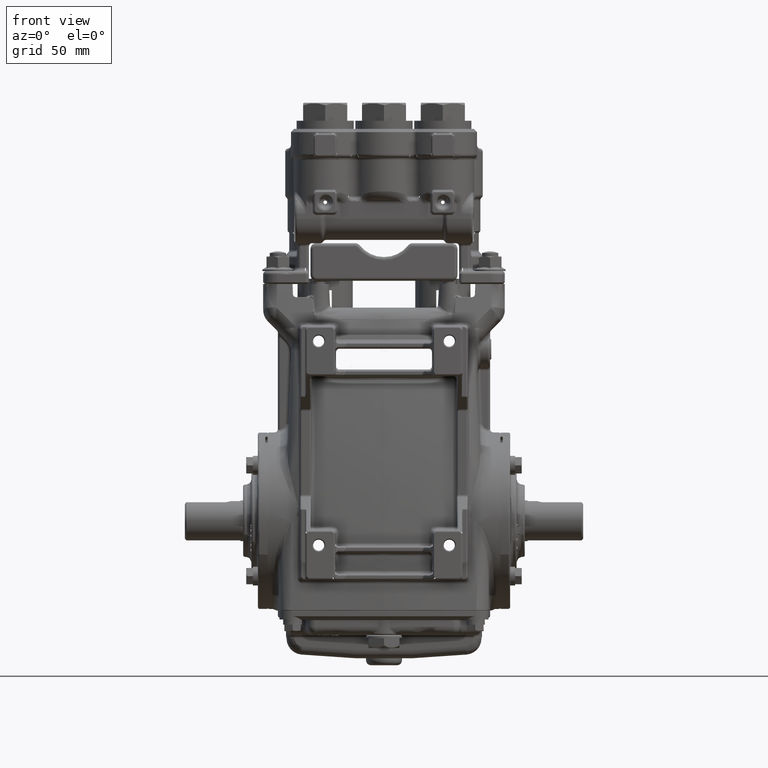
[diagram: clean part render]
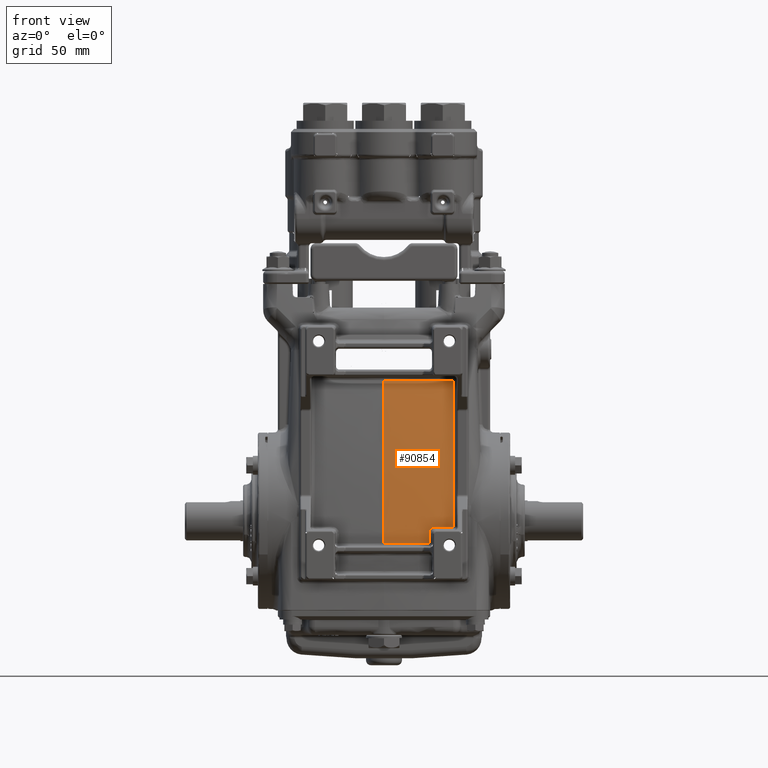
[diagram: same view with one face highlighted and labeled with its STEP entity id]
A machine part, front view. The second image highlights one B-rep face of the part: STEP entity #90854.
In plain terms, the highlighted face is a freeform B-spline surface patch.
Its self-contained STEP definition (entity closure, byte-faithful):
#553 = CARTESIAN_POINT ( 'NONE',  ( 2.083726086542785794, -2.166614530041787390, 0.4897784465330164427 ) ) ;
#942 = CARTESIAN_POINT ( 'NONE',  ( -1.758570860625543910E-16, -2.142492827023651625, 1.101084419947147230 ) ) ;
#1778 = B_SPLINE_CURVE_WITH_KNOTS ( 'NONE', 3,
 ( #11293, #28639, #89677, #46492, #99467, #942, #91385, #98891, #45925, #71290 ),
 .UNSPECIFIED., .F., .F.,
 ( 4, 2, 2, 2, 4 ),
 ( 0.06024417320094749978, 0.08542293328770995953, 0.1106016933744723985, 0.1357804534612348513, 0.1609592135479973041 ),
 .UNSPECIFIED. ) ;
#2105 = CARTESIAN_POINT ( 'NONE',  ( 1.663672434191497240, -1.730195569268732747, 3.388363233297321475 ) ) ;
#2973 = CARTESIAN_POINT ( 'NONE',  ( -2.189576524486962494, -2.325080261920545954, -2.165354330708661124 ) ) ;
#4099 = CARTESIAN_POINT ( 'NONE',  ( 0.4802293617885408650, -2.293642939336622888, 0.4897784465330087822 ) ) ;
#4658 = CARTESIAN_POINT ( 'NONE',  ( 0.8095103919857099539, -1.292140362101247275, 5.708661417322844045 ) ) ;
#5232 = CARTESIAN_POINT ( 'NONE',  ( 0.4731394191495167378, -2.398237061164401940, -2.165354330708661568 ) ) ;
#5571 = CARTESIAN_POINT ( 'NONE',  ( 1.144808578580310598, -2.243454319908963601, -0.1825626556147570412 ) ) ;
#5796 = CARTESIAN_POINT ( 'NONE',  ( 1.915486056463429509, -2.186527716124487153, 0.4897784465330153325 ) ) ;
#6350 = CARTESIAN_POINT ( 'NONE',  ( -1.062078202322136677, -2.384053432892072166, -2.165354330708661124 ) ) ;
#6658 = CARTESIAN_POINT ( 'NONE',  ( 1.671499988180573437, -2.204385450591111351, -0.1498612659050825024 ) ) ;
#6912 = CARTESIAN_POINT ( 'NONE',  ( 2.240980235268056564, -2.321187910974374269, -2.165354330708661568 ) ) ;
#7489 = CARTESIAN_POINT ( 'NONE',  ( 2.913385826771652809, -1.197969208711458178, 5.708661417322836940 ) ) ;
#8273 = B_SPLINE_SURFACE_WITH_KNOTS ( 'NONE', 3, 3, ( 
 ( #38159, #47377, #20276, #72171 ),
 ( #82462, #99779, #107286, #55484 ),
 ( #100336, #63550, #11601, #46805 ),
 ( #98632, #19697, #38718, #73853 ),
 ( #2973, #30087, #56623, #22543 ),
 ( #57732, #102597, #13847, #94504 ),
 ( #65798, #84151, #58297, #66923 ),
 ( #111771, #15548, #48481, #57177 ),
 ( #85279, #76669, #32892, #23680 ),
 ( #6350, #93387, #109510, #103157 ),
 ( #14989, #102017, #58873, #32320 ),
 ( #92819, #68055, #39259, #13290 ),
 ( #83572, #49065, #40963, #93946 ),
 ( #67491, #41517, #83025, #100899 ),
 ( #50200, #24240, #59426, #21981 ),
 ( #5232, #4099, #74416, #49637 ),
 ( #14421, #30644, #92264, #4658 ),
 ( #39815, #74982, #110077, #31210 ),
 ( #66372, #76108, #40394, #84723 ),
 ( #101456, #75554, #110654, #31766 ),
 ( #23104, #5796, #111208, #85835 ),
 ( #68624, #553, #70874, #97356 ),
 ( #6912, #50764, #16704, #27107 ),
 ( #105439, #62276, #44367, #42096 ),
 ( #77239, #112340, #59990, #95079 ),
 ( #104299, #33460, #16129, #51909 ),
 ( #103717, #24808, #17843, #7489 ) ),
 .UNSPECIFIED., .F., .F., .F.,
 ( 4, 1, 1, 1, 1, 1, 1, 1, 1, 1, 1, 2, 1, 1, 1, 1, 1, 1, 1, 1, 1, 1, 1, 4 ),
 ( 4, 4 ),
 ( 0.1820721574386664487, 0.1959246563835279065, 0.2035427212275890407, 0.2193976784518300027, 0.2310405802590582147, 0.2359332488469739197, 0.2508238822397266254, 0.2638475608825300855, 0.2796596398469345934, 0.2995163485322877017, 0.3173264764016465178, 0.3410360787193327248, 0.3577107850873240125, 0.3637457220820375925, 0.3805901526646463529, 0.4065920388027236543, 0.4224714650153005291, 0.4387315542144890612, 0.4421836685404009204, 0.4588536976265763512, 0.4664841599499357505, 0.4748837514135769711, 0.4901004416486962612, 0.5000000000000002220 ),
 ( 0.000000000000000000, 1.000000000000000000 ),
 .UNSPECIFIED. ) ;
#8288 = CARTESIAN_POINT ( 'NONE',  ( 1.084498845193367922, -2.278379151644223111, -0.5438560755862406060 ) ) ;
#8927 = CARTESIAN_POINT ( 'NONE',  ( 1.527915027197057851, -2.215913157812103851, -0.1499813333665312165 ) ) ;
#10197 = VERTEX_POINT ( 'NONE', #8288 ) ;
#10890 = CARTESIAN_POINT ( 'NONE',  ( 1.084292040675105540, -2.269580977062863880, -0.4392384004682781118 ) ) ;
#11293 = CARTESIAN_POINT ( 'NONE',  ( -3.880358019103940263E-16, -1.793953829572055847, 3.388778491068083820 ) ) ;
#11601 = CARTESIAN_POINT ( 'NONE',  ( -2.706392384829026998, -1.723957603235172220, 3.127925920230758550 ) ) ;
#12170 = FACE_OUTER_BOUND ( 'NONE', #100682, .T. ) ;
#12506 = CARTESIAN_POINT ( 'NONE',  ( 1.240444894278595944, -2.234850677969940413, -0.1501769756821681734 ) ) ;
#12872 = ORIENTED_EDGE ( 'NONE', *, *, #52642, .T. ) ;
#12983 = CARTESIAN_POINT ( 'NONE',  ( 1.670161274976124099, -2.147400697531644642, 0.4426558265975095718 ) ) ;
#13290 = CARTESIAN_POINT ( 'NONE',  ( -0.4056649939589589970, -1.297898323476696980, 5.708661417322884901 ) ) ;
#13847 = CARTESIAN_POINT ( 'NONE',  ( -2.085131295870258139, -1.806265684984527997, 3.127925920230774981 ) ) ;
#13879 = CARTESIAN_POINT ( 'NONE',  ( 1.663672434191497240, -1.730195569268732747, 3.388363233297321475 ) ) ;
#14421 = CARTESIAN_POINT ( 'NONE',  ( 0.7593239362273180859, -2.393134938270132572, -2.165354330708661568 ) ) ;
#14989 = CARTESIAN_POINT ( 'NONE',  ( -0.7520193225572906481, -2.393118508680737833, -2.165354330708661568 ) ) ;
#15548 = CARTESIAN_POINT ( 'NONE',  ( -1.648668314213679542, -2.215500870424770952, 0.4897784465330115022 ) ) ;
#16129 = CARTESIAN_POINT ( 'NONE',  ( 2.855287436206087825, -1.701152819370445712, 3.127925920230766099 ) ) ;
#16326 = VERTEX_POINT ( 'NONE', #13879 ) ;
#16704 = CARTESIAN_POINT ( 'NONE',  ( 2.326410604817644057, -1.776570720899579792, 3.127925920230754109 ) ) ;
#16828 = CARTESIAN_POINT ( 'NONE',  ( 1.084030175641961691, -2.258080956032562980, -0.3076871936120910700 ) ) ;
#17069 = B_SPLINE_CURVE_WITH_KNOTS ( 'NONE', 3,
 ( #104082, #86778, #111004, #67275, #68416, #94300 ),
 .UNSPECIFIED., .F., .F.,
 ( 4, 2, 4 ),
 ( 6.938893903907228378E-18, 0.02115083174250377909, 0.04230166348500755125 ),
 .UNSPECIFIED. ) ;
#17396 = CARTESIAN_POINT ( 'NONE',  ( 1.084082905692057119, -2.260424564412967463, -0.3341032687350067865 ) ) ;
#17843 = CARTESIAN_POINT ( 'NONE',  ( 2.913385843901003192, -1.691985680221069988, 3.127925920230766099 ) ) ;
#19024 = CARTESIAN_POINT ( 'NONE',  ( 1.170809080665529356, -2.240468819262972477, -0.1662471103388174221 ) ) ;
#19697 = CARTESIAN_POINT ( 'NONE',  ( -2.450684691601668241, -2.118214908375335881, 0.4897784465330197179 ) ) ;
#20276 = CARTESIAN_POINT ( 'NONE',  ( -2.913385809642300650, -1.691985680221144150, 3.127925920230762102 ) ) ;
#21240 = CARTESIAN_POINT ( 'NONE',  ( 1.671499988180573437, -2.204385450591111351, -0.1498612659050825024 ) ) ;
#21981 = CARTESIAN_POINT ( 'NONE',  ( 0.2434275427088368471, -1.298707510032790280, 5.708661417322822729 ) ) ;
#22309 = CARTESIAN_POINT ( 'NONE',  ( 1.091960265938938024, -2.253119158052580229, -0.2568951499013942819 ) ) ;
#22543 = CARTESIAN_POINT ( 'NONE',  ( -2.324091733874597221, -1.235065584125857319, 5.708661417322855591 ) ) ;
#23104 = CARTESIAN_POINT ( 'NONE',  ( 1.866877324122247384, -2.345940473350990541, -2.165354330708661568 ) ) ;
#23680 = CARTESIAN_POINT ( 'NONE',  ( -1.464488406949914445, -1.274012937168635062, 5.708661417322844045 ) ) ;
#24240 = CARTESIAN_POINT ( 'NONE',  ( 0.2402441229366550357, -2.299342540392105505, 0.4897784465330115022 ) ) ;
#24552 = CARTESIAN_POINT ( 'NONE',  ( 1.240444894278595944, -2.234850677969940413, -0.1501769756821681734 ) ) ;
#24808 = CARTESIAN_POINT ( 'NONE',  ( 2.913385628152181717, -2.048762232609148803, 0.4897784465330224379 ) ) ;
#26646 = CARTESIAN_POINT ( 'NONE',  ( 1.084135534368267484, -2.262743776373799420, -0.3605215198298847845 ) ) ;
#27107 = CARTESIAN_POINT ( 'NONE',  ( 2.369125755900590491, -1.232386614232148236, 5.708661417322822729 ) ) ;
#28639 = CARTESIAN_POINT ( 'NONE',  ( 4.358330601197656172E-16, -1.853113028278692065, 3.063643956405773583 ) ) ;
#30087 = CARTESIAN_POINT ( 'NONE',  ( -2.234415192802542194, -2.147607685230842556, 0.4897784465330246584 ) ) ;
#30416 = CARTESIAN_POINT ( 'NONE',  ( 1.219837589830072178, -2.236194069783405070, -0.1512179920518048892 ) ) ;
#30626 = B_SPLINE_CURVE_WITH_KNOTS ( 'NONE', 3,
 ( #74746, #97974, #92588, #83346, #22309, #109850, #92029, #56382, #91470, #72084, #5571, #66129, #19024, #48813, #40724, #30416, #107195, #12506 ),
 .UNSPECIFIED., .F., .F.,
 ( 4, 2, 2, 2, 2, 2, 2, 2, 4 ),
 ( 0.000000000000000000, 0.0007886128827416662808, 0.001577225765483332562, 0.002365838648224998734, 0.003154451530966665123, 0.003943064413708331079, 0.004731677296449997468, 0.005520290179191663857, 0.006308903061933330246 ),
 .UNSPECIFIED. ) ;
#30644 = CARTESIAN_POINT ( 'NONE',  ( 0.7760523888099777334, -2.282663781206307085, 0.4897784465330197179 ) ) ;
#31210 = CARTESIAN_POINT ( 'NONE',  ( 1.192739666030864010, -1.282981708238520646, 5.708661417322852927 ) ) ;
#31766 = CARTESIAN_POINT ( 'NONE',  ( 1.789341252083286316, -1.261249471572276626, 5.708661417322813847 ) ) ;
#32320 = CARTESIAN_POINT ( 'NONE',  ( -0.8019535934125021637, -1.292120820694519612, 5.708661417322794307 ) ) ;
#32892 = CARTESIAN_POINT ( 'NONE',  ( -1.424768798695139616, -1.872199753906887310, 3.127925920230765211 ) ) ;
#33460 = CARTESIAN_POINT ( 'NONE',  ( 2.848460234453432882, -2.059014184365170586, 0.4897784465330218828 ) ) ;
#35959 = EDGE_CURVE ( 'NONE', #98917, #103155, #1778, .T. ) ;
#38159 = CARTESIAN_POINT ( 'NONE',  ( -2.913385826771640374, -2.265344068576862213, -2.165354330708661124 ) ) ;
#38718 = CARTESIAN_POINT ( 'NONE',  ( -2.487087237515684279, -1.755350102494639408, 3.127925920230762102 ) ) ;
#39259 = CARTESIAN_POINT ( 'NONE',  ( -0.4014957656440683587, -1.927885586440233778, 3.127925920230790080 ) ) ;
#39815 = CARTESIAN_POINT ( 'NONE',  ( 1.099363582922382898, -2.382977130700381085, -2.165354330708661568 ) ) ;
#40394 = CARTESIAN_POINT ( 'NONE',  ( 1.523571933390371225, -1.864023738764603477, 3.127925920230739010 ) ) ;
#40724 = CARTESIAN_POINT ( 'NONE',  ( 1.199760974019113746, -2.237762477949927220, -0.1552527717035294130 ) ) ;
#40963 = CARTESIAN_POINT ( 'NONE',  ( -0.1449928827331218584, -1.931427949591510096, 3.127925920230758550 ) ) ;
#41299 = CARTESIAN_POINT ( 'NONE',  ( 0.7232950173701820917, -2.296882259659634329, -0.5439939882487848655 ) ) ;
#41517 = CARTESIAN_POINT ( 'NONE',  ( 0.1019934165441796214, -2.300768595909192804, 0.4897784465330164427 ) ) ;
#42096 = CARTESIAN_POINT ( 'NONE',  ( 2.546430131488119031, -1.222062046991427398, 5.708661417322842269 ) ) ;
#44367 = CARTESIAN_POINT ( 'NONE',  ( 2.511391663655031969, -1.752002329188381724, 3.127925920230767431 ) ) ;
#45925 = CARTESIAN_POINT ( 'NONE',  ( 4.617795764761673671E-16, -2.280336022690061970, -0.2144450474789921235 ) ) ;
#45927 = CARTESIAN_POINT ( 'NONE',  ( 1.664976883656835716, -1.831649929826981715, 2.801814109386677742 ) ) ;
#46492 = CARTESIAN_POINT ( 'NONE',  ( 4.429618779532718446E-16, -2.010167427803502438, 2.084183344497465118 ) ) ;
#46805 = CARTESIAN_POINT ( 'NONE',  ( -2.727940840439589287, -1.210589729325568742, 5.708661417322833387 ) ) ;
#46893 = ORIENTED_EDGE ( 'NONE', *, *, #71599, .T. ) ;
#47377 = CARTESIAN_POINT ( 'NONE',  ( -2.913386025391116796, -2.048762232609160350, 0.4897784465330197179 ) ) ;
#47621 = CARTESIAN_POINT ( 'NONE',  ( 1.671499988180573437, -2.204385450591111351, -0.1498612659050825024 ) ) ;
#48481 = CARTESIAN_POINT ( 'NONE',  ( -1.694981807724703637, -1.848142482010726173, 3.127925920230747892 ) ) ;
#48813 = CARTESIAN_POINT ( 'NONE',  ( 1.189792242981690951, -2.238631070579994109, -0.1583026045091736334 ) ) ;
#49065 = CARTESIAN_POINT ( 'NONE',  ( -0.1450234440065840402, -2.300768595909192804, 0.4897784465330164427 ) ) ;
#49637 = CARTESIAN_POINT ( 'NONE',  ( 0.4944103712627440639, -1.296520347643934645, 5.708661417322814735 ) ) ;
#49976 = CARTESIAN_POINT ( 'NONE',  ( 1.084498845193367922, -2.278379151644223111, -0.5438560755862406060 ) ) ;
#50200 = CARTESIAN_POINT ( 'NONE',  ( 0.2386529819870311930, -2.400899943846322770, -2.165354330708661568 ) ) ;
#50676 = ORIENTED_EDGE ( 'NONE', *, *, #95168, .T. ) ;
#50764 = CARTESIAN_POINT ( 'NONE',  ( 2.283695148368135364, -2.140796000541713706, 0.4897784465330153325 ) ) ;
#51881 = VERTEX_POINT ( 'NONE', #21240 ) ;
#51909 = CARTESIAN_POINT ( 'NONE',  ( 2.862114397419989853, -1.201536995417320064, 5.708661417322835163 ) ) ;
#52642 = EDGE_CURVE ( 'NONE', #10197, #108454, #73251, .T. ) ;
#54596 = CARTESIAN_POINT ( 'NONE',  ( 1.668855918374694713, -2.079555208578092618, 1.034124399978609388 ) ) ;
#55484 = CARTESIAN_POINT ( 'NONE',  ( -2.841641326625985009, -1.202961639721772391, 5.708661417322835163 ) ) ;
#56382 = CARTESIAN_POINT ( 'NONE',  ( 1.115924110286393489, -2.247725094233928189, -0.2116756261339114986 ) ) ;
#56623 = CARTESIAN_POINT ( 'NONE',  ( -2.279253307875170886, -1.782954428840536565, 3.127925920230772761 ) ) ;
#57177 = CARTESIAN_POINT ( 'NONE',  ( -1.741295670112182004, -1.263397575016607766, 5.708661417322819176 ) ) ;
#57610 = ORIENTED_EDGE ( 'NONE', *, *, #89156, .T. ) ;
#57732 = CARTESIAN_POINT ( 'NONE',  ( -1.989399371181372889, -2.338284998638616496, -2.165354330708661124 ) ) ;
#58297 = CARTESIAN_POINT ( 'NONE',  ( -1.895214259565355164, -1.827571154474286530, 3.127925920230762102 ) ) ;
#58873 = CARTESIAN_POINT ( 'NONE',  ( -0.7853088048963520196, -1.913828282296069494, 3.127925920230730128 ) ) ;
#59265 = VERTEX_POINT ( 'NONE', #75451 ) ;
#59426 = CARTESIAN_POINT ( 'NONE',  ( 0.2418360551790647572, -1.930064199602339103, 3.127925920230748780 ) ) ;
#59726 = CARTESIAN_POINT ( 'NONE',  ( 1.384225660618530585, -2.226095713898978978, -0.1500869513334240068 ) ) ;
#59990 = CARTESIAN_POINT ( 'NONE',  ( 2.708159283295321185, -1.723791484228669901, 3.127925920230772761 ) ) ;
#60696 = CARTESIAN_POINT ( 'NONE',  ( 1.084188063796198698, -2.265038599171059541, -0.3869418781655847295 ) ) ;
#62276 = CARTESIAN_POINT ( 'NONE',  ( 2.476352911878942020, -2.114609130722289176, 0.4897784465330224379 ) ) ;
#63550 = CARTESIAN_POINT ( 'NONE',  ( -2.684844189044222507, -2.084204787240041767, 0.4897784465330180526 ) ) ;
#65798 = CARTESIAN_POINT ( 'NONE',  ( -1.798349607840901365, -2.349958156103969742, -2.165354330708661124 ) ) ;
#66054 = ORIENTED_EDGE ( 'NONE', *, *, #111883, .T. ) ;
#66129 = CARTESIAN_POINT ( 'NONE',  ( 1.161814723588220355, -2.241433458655238020, -0.1711033893030862174 ) ) ;
#66372 = CARTESIAN_POINT ( 'NONE',  ( 1.438329920831149300, -2.368889522099581146, -2.165354330708661568 ) ) ;
#66923 = CARTESIAN_POINT ( 'NONE',  ( -1.943646624093664954, -1.254362676313991454, 5.708661417322839604 ) ) ;
#67261 = CARTESIAN_POINT ( 'NONE',  ( 0.3616787861395122650, -2.306496812825876486, -0.5440526561699657870 ) ) ;
#67275 = CARTESIAN_POINT ( 'NONE',  ( 0.5550348168314166442, -1.788257067635132591, 3.388743369700574881 ) ) ;
#67491 = CARTESIAN_POINT ( 'NONE',  ( 0.1020157036538342499, -2.401574803149599369, -2.165354330708661568 ) ) ;
#68055 = CARTESIAN_POINT ( 'NONE',  ( -0.3973269798802264163, -2.297068369690841383, 0.4897784465330322634 ) ) ;
#68416 = CARTESIAN_POINT ( 'NONE',  ( 0.2775766395478563853, -1.793953827746440188, 3.388778490940969945 ) ) ;
#68624 = CARTESIAN_POINT ( 'NONE',  ( 2.035968259211040188, -2.335433637454240152, -2.165354330708661568 ) ) ;
#70874 = CARTESIAN_POINT ( 'NONE',  ( 2.131484495458455086, -1.801026039677051660, 3.127925920230756329 ) ) ;
#71290 = CARTESIAN_POINT ( 'NONE',  ( -4.438784194610900819E-16, -2.306496805849697296, -0.5440526558611742391 ) ) ;
#71599 = EDGE_CURVE ( 'NONE', #16326, #98917, #17069, .T. ) ;
#72084 = CARTESIAN_POINT ( 'NONE',  ( 1.136770881183574611, -2.244517018020597998, -0.1892222247075049935 ) ) ;
#72171 = CARTESIAN_POINT ( 'NONE',  ( -2.913385826771655474, -1.197969208711458178, 5.708661417322835163 ) ) ;
#73251 = B_SPLINE_CURVE_WITH_KNOTS ( 'NONE', 3,
 ( #96322, #81757, #10890, #60696, #26646, #17396, #16828 ),
 .UNSPECIFIED., .F., .F.,
 ( 4, 3, 4 ),
 ( 1.734723475976807094E-18, 0.004000006667516224981, 0.006020819402372753343 ),
 .UNSPECIFIED. ) ;
#73853 = CARTESIAN_POINT ( 'NONE',  ( -2.523490070267367269, -1.223445930611730459, 5.708661417322837828 ) ) ;
#74416 = CARTESIAN_POINT ( 'NONE',  ( 0.4873200862093268193, -1.924545779200158346, 3.127925920230743451 ) ) ;
#74746 = CARTESIAN_POINT ( 'NONE',  ( 1.084030175641961691, -2.258080956032562980, -0.3076871936120910700 ) ) ;
#74982 = CARTESIAN_POINT ( 'NONE',  ( 1.130488594888034770, -2.260970933480431988, 0.4897784465330229930 ) ) ;
#75451 = CARTESIAN_POINT ( 'NONE',  ( 1.240444894278595944, -2.234850677969940413, -0.1501769756821681734 ) ) ;
#75554 = CARTESIAN_POINT ( 'NONE',  ( 1.695585503688048057, -2.210467917730779330, 0.4897784465330109471 ) ) ;
#76108 = CARTESIAN_POINT ( 'NONE',  ( 1.480950586178898964, -2.231805334558659037, 0.4897784465330071724 ) ) ;
#76212 = ORIENTED_EDGE ( 'NONE', *, *, #35959, .T. ) ;
#76669 = CARTESIAN_POINT ( 'NONE',  ( -1.385049581091524207, -2.240167768303173546, 0.4897784465330202730 ) ) ;
#77239 = CARTESIAN_POINT ( 'NONE',  ( 2.664582750533178945, -2.288033759751159746, -2.165354330708661568 ) ) ;
#80381 = B_SPLINE_CURVE_WITH_KNOTS ( 'NONE', 3,
 ( #47621, #12983, #54596, #89678, #45927, #2105 ),
 .UNSPECIFIED., .F., .F.,
 ( 4, 2, 4 ),
 ( 0.000000000000000000, 0.04535818248946323072, 0.09071636497892646145 ),
 .UNSPECIFIED. ) ;
#81688 = CARTESIAN_POINT ( 'NONE',  ( -4.438784194610900819E-16, -2.306496805849697296, -0.5440526558611742391 ) ) ;
#81757 = CARTESIAN_POINT ( 'NONE',  ( 1.084395628949245571, -2.274027808519377469, -0.4915433102944287147 ) ) ;
#82462 = CARTESIAN_POINT ( 'NONE',  ( -2.812979403157047642, -2.274754709963543675, -2.165354330708661124 ) ) ;
#83025 = CARTESIAN_POINT ( 'NONE',  ( 0.1019719231317475494, -1.931427949591510096, 3.127925920230758550 ) ) ;
#83346 = CARTESIAN_POINT ( 'NONE',  ( 1.088983977023511240, -2.254165694445372736, -0.2667714252498792349 ) ) ;
#83572 = CARTESIAN_POINT ( 'NONE',  ( -0.1450532115828236657, -2.401574803149604254, -2.165354330708661568 ) ) ;
#84151 = CARTESIAN_POINT ( 'NONE',  ( -1.846782245487664120, -2.194251839819475247, 0.4897784465330191628 ) ) ;
#84723 = CARTESIAN_POINT ( 'NONE',  ( 1.566192897389181660, -1.270407001257441548, 5.708661417322804965 ) ) ;
#85279 = CARTESIAN_POINT ( 'NONE',  ( -1.345329668388606015, -2.372960332906651093, -2.165354330708661124 ) ) ;
#85835 = CARTESIAN_POINT ( 'NONE',  ( 2.012704400865600096, -1.251118121441595177, 5.708661417322824505 ) ) ;
#86778 = CARTESIAN_POINT ( 'NONE',  ( 1.386876609546873196, -1.750932431424212732, 3.388505796847545604 ) ) ;
#89156 = EDGE_CURVE ( 'NONE', #51881, #16326, #80381, .T. ) ;
#89677 = CARTESIAN_POINT ( 'NONE',  ( 4.458260523316134090E-16, -1.908191123398606193, 2.737698722522007078 ) ) ;
#89678 = CARTESIAN_POINT ( 'NONE',  ( 1.666263864281609886, -1.921684427565186759, 2.213638218249973200 ) ) ;
#90854 = ADVANCED_FACE ( 'NONE', ( #12170 ), #8273, .T. ) ;
#91385 = CARTESIAN_POINT ( 'NONE',  ( -7.157645399727127983E-16, -2.181088388933470679, 0.7727195738630786570 ) ) ;
#91470 = CARTESIAN_POINT ( 'NONE',  ( 1.122377073161225924, -2.246647239450680900, -0.2037528214286146722 ) ) ;
#92029 = CARTESIAN_POINT ( 'NONE',  ( 1.104538450792835302, -2.249909094682416288, -0.2288645540813242785 ) ) ;
#92264 = CARTESIAN_POINT ( 'NONE',  ( 0.7927816049644672569, -1.913850617605292292, 3.127925920230765211 ) ) ;
#92588 = CARTESIAN_POINT ( 'NONE',  ( 1.084999455407734903, -2.256193883383995846, -0.2870588723600734360 ) ) ;
#92819 = CARTESIAN_POINT ( 'NONE',  ( -0.3931574066697895442, -2.399831511276513840, -2.165354330708661568 ) ) ;
#93387 = CARTESIAN_POINT ( 'NONE',  ( -1.091501189288766271, -2.263308735351801104, 0.4897784465330011217 ) ) ;
#93946 = CARTESIAN_POINT ( 'NONE',  ( -0.1449627675236092594, -1.299212598425193654, 5.708661417322835163 ) ) ;
#94300 = CARTESIAN_POINT ( 'NONE',  ( -3.880358019103940263E-16, -1.793953829572055847, 3.388778491068083820 ) ) ;
#94504 = CARTESIAN_POINT ( 'NONE',  ( -2.132997294791505460, -1.245100427256945474, 5.708661417322859144 ) ) ;
#95079 = CARTESIAN_POINT ( 'NONE',  ( 2.729947521028413426, -1.210496205736398601, 5.708661417322848486 ) ) ;
#95168 = EDGE_CURVE ( 'NONE', #103155, #10197, #95733, .T. ) ;
#95733 = B_SPLINE_CURVE_WITH_KNOTS ( 'NONE', 3,
 ( #81688, #67261, #41299, #49976 ),
 .UNSPECIFIED., .F., .F.,
 ( 4, 4 ),
 ( 3.765475550429678387E-18, 0.02755972158727674690 ),
 .UNSPECIFIED. ) ;
#96322 = CARTESIAN_POINT ( 'NONE',  ( 1.084498845193367922, -2.278379151644223111, -0.5438560755862406060 ) ) ;
#96989 = CARTESIAN_POINT ( 'NONE',  ( -3.880358019103940263E-16, -1.793953829572055847, 3.388778491068083820 ) ) ;
#97356 = CARTESIAN_POINT ( 'NONE',  ( 2.179242577519481916, -1.242815352902275405, 5.708661417322825393 ) ) ;
#97974 = CARTESIAN_POINT ( 'NONE',  ( 1.084009473194327500, -2.257160827383280388, -0.2973159269254637138 ) ) ;
#98632 = CARTESIAN_POINT ( 'NONE',  ( -2.414281635307335083, -2.308400903803342619, -2.165354330708661124 ) ) ;
#98891 = CARTESIAN_POINT ( 'NONE',  ( -7.186473001584006522E-16, -2.250010485369872804, 0.1149634935245342771 ) ) ;
#98917 = VERTEX_POINT ( 'NONE', #96989 ) ;
#99467 = CARTESIAN_POINT ( 'NONE',  ( -1.729833203888251239E-16, -2.057036775566738918, 1.756788232823439211 ) ) ;
#99779 = CARTESIAN_POINT ( 'NONE',  ( -2.822533585408711243, -2.063108027997043958, 0.4897784465330197179 ) ) ;
#100336 = CARTESIAN_POINT ( 'NONE',  ( -2.663295530942337397, -2.288034568519342837, -2.165354330708661124 ) ) ;
#100682 = EDGE_LOOP ( 'NONE', ( #57610, #46893, #76212, #50676, #12872, #66054, #101453 ) ) ;
#100899 = CARTESIAN_POINT ( 'NONE',  ( 0.1019499836553659500, -1.299212598425201870, 5.708661417322835163 ) ) ;
#101453 = ORIENTED_EDGE ( 'NONE', *, *, #111352, .T. ) ;
#101456 = CARTESIAN_POINT ( 'NONE',  ( 1.648708095812247754, -2.358238290425402450, -2.165354330708661568 ) ) ;
#102017 = CARTESIAN_POINT ( 'NONE',  ( -0.7686644455069936432, -2.282642455870154130, 0.4897784465330022319 ) ) ;
#102597 = CARTESIAN_POINT ( 'NONE',  ( -2.037265628463426737, -2.172062645620671084, 0.4897784465330257131 ) ) ;
#103155 = VERTEX_POINT ( 'NONE', #112460 ) ;
#103157 = CARTESIAN_POINT ( 'NONE',  ( -1.150346110494639085, -1.283976514928853341, 5.708661417322789866 ) ) ;
#103717 = CARTESIAN_POINT ( 'NONE',  ( 2.913385826771654141, -2.265344068576858216, -2.165354330708661568 ) ) ;
#104082 = CARTESIAN_POINT ( 'NONE',  ( 1.663672434191497240, -1.730195569268732747, 3.388363233297321475 ) ) ;
#104299 = CARTESIAN_POINT ( 'NONE',  ( 2.841633460699814151, -2.272069094341539142, -2.165354330708661568 ) ) ;
#105417 = CARTESIAN_POINT ( 'NONE',  ( 1.084030175641961691, -2.258080956032562980, -0.3076871936120910700 ) ) ;
#105439 = CARTESIAN_POINT ( 'NONE',  ( 2.441314665332592337, -2.306279735125314811, -2.165354330708661568 ) ) ;
#106292 = B_SPLINE_CURVE_WITH_KNOTS ( 'NONE', 3,
 ( #24552, #59726, #8927, #6658 ),
 .UNSPECIFIED., .F., .F.,
 ( 4, 4 ),
 ( 6.938893903907228378E-18, 0.01097631794368908453 ),
 .UNSPECIFIED. ) ;
#107195 = CARTESIAN_POINT ( 'NONE',  ( 1.230050119412569920, -2.235483626887897035, -0.1501834840828506212 ) ) ;
#107286 = CARTESIAN_POINT ( 'NONE',  ( -2.832087334218518215, -1.704813401921120075, 3.127925920230760770 ) ) ;
#108454 = VERTEX_POINT ( 'NONE', #105417 ) ;
#109510 = CARTESIAN_POINT ( 'NONE',  ( -1.120923444174017236, -1.894876309026141348, 3.127925920230727019 ) ) ;
#109850 = CARTESIAN_POINT ( 'NONE',  ( 1.099710183924679008, -2.250997816146372177, -0.2380024238543102799 ) ) ;
#110077 = CARTESIAN_POINT ( 'NONE',  ( 1.161614335099258266, -1.892574789840514082, 3.127925920230770540 ) ) ;
#110654 = CARTESIAN_POINT ( 'NONE',  ( 1.742463560137305301, -1.843263351871661904, 3.127925920230746559 ) ) ;
#111004 = CARTESIAN_POINT ( 'NONE',  ( 1.109740814995540781, -1.766747696196212303, 3.388606815657019933 ) ) ;
#111208 = CARTESIAN_POINT ( 'NONE',  ( 1.964095400574094485, -1.820132787096655713, 3.127925920230754109 ) ) ;
#111352 = EDGE_CURVE ( 'NONE', #59265, #51881, #106292, .T. ) ;
#111771 = CARTESIAN_POINT ( 'NONE',  ( -1.602354164347848275, -2.360792373919398557, -2.165354330708661124 ) ) ;
#111883 = EDGE_CURVE ( 'NONE', #108454, #59265, #30626, .T. ) ;
#112340 = CARTESIAN_POINT ( 'NONE',  ( 2.686370785910845438, -2.084068835673706488, 0.4897784465330251580 ) ) ;
#112460 = CARTESIAN_POINT ( 'NONE',  ( -4.438784194610900819E-16, -2.306496805849697296, -0.5440526558611742391 ) ) ;